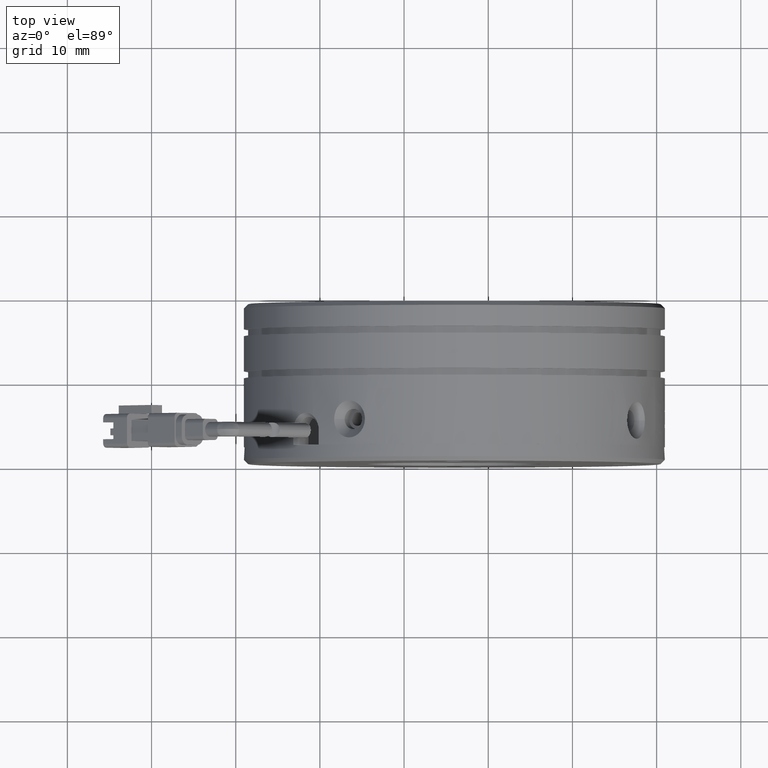
[diagram: clean part render]
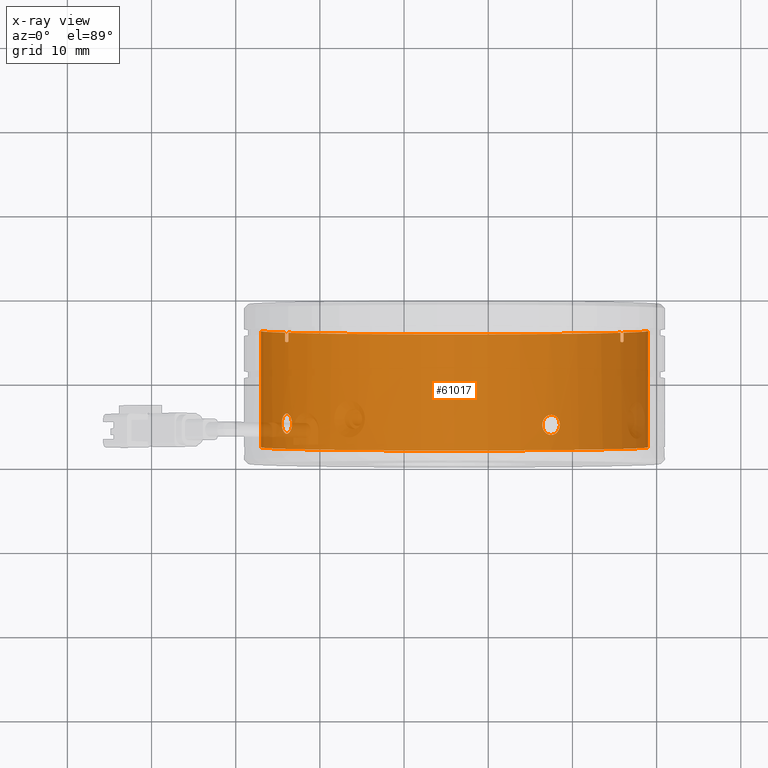
[diagram: x-ray — body ghosted, one internal face saturated and labeled with its STEP entity id]
A machine part, top view, then the same camera in x-ray: the body is ghosted and one INTERNAL B-rep face — a face not visible from any outside direction — is saturated and labeled: STEP entity #61017.
In plain terms, the highlighted cylindrical surface (partial cylindrical patch) has radius 23 mm, axis along (0, -1, 0).
Its self-contained STEP definition (entity closure, byte-faithful):
#7 = CARTESIAN_POINT ( 'NONE',  ( -24.51727409074066000, 5.168234147060708500, -10.44510667526038500 ) ) ;
#72 = ORIENTED_EDGE ( 'NONE', *, *, #37452, .T. ) ;
#111 = CARTESIAN_POINT ( 'NONE',  ( -23.97722481509784500, 14.83802741222081100, -11.44352997356001100 ) ) ;
#273 = DIRECTION ( 'NONE',  ( 0.0000000000000000000, -1.000000000000000000, 0.0000000000000000000 ) ) ;
#379 = CARTESIAN_POINT ( 'NONE',  ( 18.97418136128692400, 15.96823414706070900, 3.607411678402394600E-016 ) ) ;
#630 = DIRECTION ( 'NONE',  ( -0.0000000000000000000, 1.000000000000000000, -0.0000000000000000000 ) ) ;
#1054 = VECTOR ( 'NONE', #52074, 1000.000000000000000 ) ;
#1269 = CARTESIAN_POINT ( 'NONE',  ( -24.44793352291791800, 4.563459004488588100, -10.58021073708997100 ) ) ;
#1473 = CARTESIAN_POINT ( 'NONE',  ( -23.31727409074066400, 5.009664724872667600, -12.52356764434301300 ) ) ;
#1841 = DIRECTION ( 'NONE',  ( 0.0000000000000000000, 1.000000000000000000, -0.0000000000000000000 ) ) ;
#2261 = CARTESIAN_POINT ( 'NONE',  ( 6.419288036547238900, 5.009664838911916700, -20.49145545202761600 ) ) ;
#2462 = CARTESIAN_POINT ( 'NONE',  ( 8.105686671544905400, 4.207178556900186300, -19.54070514681510700 ) ) ;
#2550 = CARTESIAN_POINT ( 'NONE',  ( 16.07962476566575200, 14.91823414709545900, -11.17010051491571300 ) ) ;
#2586 = CARTESIAN_POINT ( 'NONE',  ( -23.75213114963882400, 15.96823414706070900, -11.82677448509502600 ) ) ;
#2693 = FACE_OUTER_BOUND ( 'NONE', #42908, .T. ) ;
#3369 = VERTEX_POINT ( 'NONE', #379 ) ;
#3969 = CARTESIAN_POINT ( 'NONE',  ( -23.56546572866146900, 6.127453521336774700, -12.13319654212314300 ) ) ;
#4013 = CARTESIAN_POINT ( 'NONE',  ( 15.70049387221283300, 14.91823414709988100, -11.82677448509476600 ) ) ;
#4722 = CARTESIAN_POINT ( 'NONE',  ( 6.947721575141827100, 6.217228150472411800, -20.21391931231695000 ) ) ;
#4865 = CARTESIAN_POINT ( 'NONE',  ( -24.08666358602147600, 14.88835536865518200, -11.25000000000226100 ) ) ;
#4971 = VERTEX_POINT ( 'NONE', #22191 ) ;
#5121 = B_SPLINE_CURVE_WITH_KNOTS ( 'NONE', 3,
 ( #35845, #2261, #40670, #11966, #45461, #16775, #50259, #21615, #55032, #26466, #59813, #31278, #2462, #36055, #7281, #40873, #12166, #45667 ),
 .UNSPECIFIED., .F., .F.,
 ( 4, 2, 2, 2, 2, 2, 2, 2, 4 ),
 ( 0.0000000000000000000, 0.0004689497391487928700, 0.0009378994782975857400, 0.001406849217446378600, 0.001875798956595171500, 0.002344748695743964400, 0.002813698434892757100, 0.003282648174041550300, 0.003751597913190343000 ),
 .UNSPECIFIED. ) ;
#5391 = CARTESIAN_POINT ( 'NONE',  ( -24.13126204309777700, 14.91823414706268200, -11.17010051490515300 ) ) ;
#5635 = VERTEX_POINT ( 'NONE', #45544 ) ;
#6104 = CARTESIAN_POINT ( 'NONE',  ( -24.30329861827532100, 4.209014772784633400, -10.85523248981661100 ) ) ;
#7009 = CARTESIAN_POINT ( 'NONE',  ( 6.419288036547239800, 5.168234147060708500, -20.49145545202761900 ) ) ;
#7281 = CARTESIAN_POINT ( 'NONE',  ( 8.369952832163601600, 4.563038406329866300, -19.37391274317719000 ) ) ;
#7345 = VECTOR ( 'NONE', #273, 1000.000000000000000 ) ;
#7709 = B_SPLINE_CURVE_WITH_KNOTS ( 'NONE', 3,
 ( #18289, #13466, #27959, #61297, #32764, #3969, #37557, #8812, #42389, #13676, #47178, #18497, #51955, #23356, #56714, #28163, #61502, #32978 ),
 .UNSPECIFIED., .F., .F.,
 ( 4, 2, 2, 2, 2, 2, 2, 2, 4 ),
 ( 0.0000000000000000000, 0.0004689497391487915200, 0.0009378994782975830300, 0.001406849217446374700, 0.001875798956595166100, 0.002344748695743957500, 0.002813698434892749300, 0.003282648174041540700, 0.003751597913190332100 ),
 .UNSPECIFIED. ) ;
#8716 = ORIENTED_EDGE ( 'NONE', *, *, #25869, .F. ) ;
#8812 = CARTESIAN_POINT ( 'NONE',  ( -23.78529278002920600, 6.336581184384623800, -11.77217193391860100 ) ) ;
#9075 = CARTESIAN_POINT ( 'NONE',  ( 15.95881437383662200, 14.84346665168640700, -11.38557509623158700 ) ) ;
#9585 = CARTESIAN_POINT ( 'NONE',  ( 6.632915089850048000, 5.905454435005612600, -20.38146152833930100 ) ) ;
#9984 = B_SPLINE_CURVE_WITH_KNOTS ( 'NONE', 3,
 ( #23690, #42709, #14202, #47703, #19051, #52492, #23908, #57264, #28711, #62054, #33511, #4722, #38323, #9585, #43124, #14422, #47909, #19260 ),
 .UNSPECIFIED., .F., .F.,
 ( 4, 2, 2, 2, 2, 2, 2, 2, 4 ),
 ( 0.003751597913190343000, 0.004220547989596555600, 0.004689498066002767800, 0.005158448142408979900, 0.005627398218815192100, 0.006096348295221404300, 0.006565298371627616500, 0.007034248448033828700, 0.007503198524440040900 ),
 .UNSPECIFIED. ) ;
#10456 = CIRCLE ( 'NONE', #29030, 23.00000000000000000 ) ;
#10583 = ORIENTED_EDGE ( 'NONE', *, *, #43173, .F. ) ;
#10656 = CARTESIAN_POINT ( 'NONE',  ( 18.97418136128692400, 2.168234147060708900, 3.607411678402394600E-016 ) ) ;
#10977 = CARTESIAN_POINT ( 'NONE',  ( -24.10055566186272800, 3.999887109736790500, -11.22612060484236300 ) ) ;
#11528 = CIRCLE ( 'NONE', #34426, 23.00000000000000000 ) ;
#11966 = CARTESIAN_POINT ( 'NONE',  ( 6.554392098376819600, 4.563459004488598800, -20.42211488420486600 ) ) ;
#12166 = CARTESIAN_POINT ( 'NONE',  ( 8.497749005629934500, 5.009664952951660600, -19.29145545202758800 ) ) ;
#12312 = B_SPLINE_CURVE_WITH_KNOTS ( 'NONE', 3,
 ( #48326, #14839, #111, #19673, #53116, #24518 ),
 .UNSPECIFIED., .F., .F.,
 ( 4, 2, 4 ),
 ( 6.971257758409268300E-016, 0.0003392395238574776000, 0.0006784790477142580600 ),
 .UNSPECIFIED. ) ;
#12329 = LINE ( 'NONE', #15993, #39318 ) ;
#12584 = DIRECTION ( 'NONE',  ( 1.000000000000000000, 0.0000000000000000000, 2.168404344971000200E-019 ) ) ;
#12660 = DIRECTION ( 'NONE',  ( 0.0000000000000000000, -1.000000000000000000, 0.0000000000000000000 ) ) ;
#12721 = CARTESIAN_POINT ( 'NONE',  ( -4.025818638713078100, 15.96823414706070900, 3.557538378468061400E-016 ) ) ;
#12839 = DIRECTION ( 'NONE',  ( 0.0000000000000000000, -1.000000000000000000, 0.0000000000000000000 ) ) ;
#13420 = B_SPLINE_CURVE_WITH_KNOTS ( 'NONE', 3,
 ( #4013, #37599, #37823, #9075, #42629, #13938 ),
 .UNSPECIFIED., .F., .F.,
 ( 4, 2, 4 ),
 ( 1.758853789119408300E-014, 0.0003891355553897409600, 0.0007782711107618934500 ),
 .UNSPECIFIED. ) ;
#13466 = CARTESIAN_POINT ( 'NONE',  ( -23.31727409074066400, 5.326803455209498500, -12.52356764434300700 ) ) ;
#13676 = CARTESIAN_POINT ( 'NONE',  ( -24.02226217251855900, 6.368341060133242400, -11.36515498491086400 ) ) ;
#13681 = ORIENTED_EDGE ( 'NONE', *, *, #48724, .F. ) ;
#13938 = CARTESIAN_POINT ( 'NONE',  ( 16.07962476566575200, 14.91823414709545900, -11.17010051491571300 ) ) ;
#14202 = CARTESIAN_POINT ( 'NONE',  ( 8.471554184323547800, 5.482399001313250000, -19.30852941336860000 ) ) ;
#14422 = CARTESIAN_POINT ( 'NONE',  ( 6.447232694357950300, 5.482696053805874200, -20.47727621323946300 ) ) ;
#14505 = EDGE_CURVE ( 'NONE', #46902, #61086, #26618, .T. ) ;
#14839 = CARTESIAN_POINT ( 'NONE',  ( -24.03305864746466400, 14.85614627210344100, -11.34558758762871700 ) ) ;
#15531 = ORIENTED_EDGE ( 'NONE', *, *, #30269, .T. ) ;
#15595 = CARTESIAN_POINT ( 'NONE',  ( -24.51727409074066000, 5.168234147060708500, -10.44510667526038500 ) ) ;
#15785 = CARTESIAN_POINT ( 'NONE',  ( -23.86655334049586200, 3.968127233988175500, -11.63485059316136700 ) ) ;
#15945 = ORIENTED_EDGE ( 'NONE', *, *, #43993, .F. ) ;
#15980 = ORIENTED_EDGE ( 'NONE', *, *, #32721, .T. ) ;
#15993 = CARTESIAN_POINT ( 'NONE',  ( -27.02581863871307600, 15.96823414706070900, 3.167454145892285200E-015 ) ) ;
#16318 = B_SPLINE_CURVE_WITH_KNOTS ( 'NONE', 3,
 ( #28858, #18990, #33651, #4865 ),
 .UNSPECIFIED., .F., .F.,
 ( 4, 4 ),
 ( 7.106630889490698700E-016, 9.625846192079707600E-005 ),
 .UNSPECIFIED. ) ;
#16381 = VERTEX_POINT ( 'NONE', #7 ) ;
#16775 = CARTESIAN_POINT ( 'NONE',  ( 6.829413851103458600, 4.209014772784638800, -20.27747997956227600 ) ) ;
#16896 = CARTESIAN_POINT ( 'NONE',  ( 16.07962476567177700, 19.16823414706070800, -11.17010051490488600 ) ) ;
#17359 = EDGE_CURVE ( 'NONE', #46902, #49375, #10456, .T. ) ;
#18099 = CARTESIAN_POINT ( 'NONE',  ( -27.02581863871307600, 15.96823414706070900, 3.167454145892285200E-015 ) ) ;
#18201 = CARTESIAN_POINT ( 'NONE',  ( 15.70049387221283300, 19.16823414706070800, -11.82677448509476600 ) ) ;
#18289 = CARTESIAN_POINT ( 'NONE',  ( -23.31727409074066400, 5.168234147060708500, -12.52356764434301100 ) ) ;
#18497 = CARTESIAN_POINT ( 'NONE',  ( -24.23973795103000100, 6.217228150472412700, -10.97354021385497100 ) ) ;
#18900 = CARTESIAN_POINT ( 'NONE',  ( -24.08666358602147600, 14.88835536865518200, -11.25000000000226100 ) ) ;
#18990 = CARTESIAN_POINT ( 'NONE',  ( -24.11658433066670800, 14.90745792059463100, -11.19651942816333300 ) ) ;
#19051 = CARTESIAN_POINT ( 'NONE',  ( 8.294995099802328300, 5.906101795815303900, -19.42189011271373600 ) ) ;
#19260 = CARTESIAN_POINT ( 'NONE',  ( 6.419288036547239800, 5.168234147060708500, -20.49145545202761900 ) ) ;
#19673 = CARTESIAN_POINT ( 'NONE',  ( -23.86284854352407000, 14.85100099504852800, -11.64067142507188100 ) ) ;
#19774 = ORIENTED_EDGE ( 'NONE', *, *, #33905, .F. ) ;
#19976 = ORIENTED_EDGE ( 'NONE', *, *, #17359, .F. ) ;
#20124 = EDGE_CURVE ( 'NONE', #49630, #57515, #57051, .T. ) ;
#20617 = CARTESIAN_POINT ( 'NONE',  ( -23.63614288951995600, 4.119240143649001600, -12.01899752758801700 ) ) ;
#21503 = EDGE_CURVE ( 'NONE', #22308, #16381, #7709, .T. ) ;
#21526 = CARTESIAN_POINT ( 'NONE',  ( -23.31727409074066400, 5.168234147060708500, -12.52356764434301100 ) ) ;
#21615 = CARTESIAN_POINT ( 'NONE',  ( 7.200301966129214500, 3.999887109736792300, -20.07473702314969400 ) ) ;
#22175 = VERTEX_POINT ( 'NONE', #10656 ) ;
#22191 = CARTESIAN_POINT ( 'NONE',  ( 8.497749005629868800, 5.168234147060708500, -19.29145545202763000 ) ) ;
#22308 = VERTEX_POINT ( 'NONE', #21526 ) ;
#23175 = VERTEX_POINT ( 'NONE', #23915 ) ;
#23356 = CARTESIAN_POINT ( 'NONE',  ( -24.40728016705234900, 5.905454435005602000, -10.65873372856318500 ) ) ;
#23593 = ORIENTED_EDGE ( 'NONE', *, *, #38319, .F. ) ;
#23690 = CARTESIAN_POINT ( 'NONE',  ( 8.497749005629868800, 5.168234147060708500, -19.29145545202763000 ) ) ;
#23908 = CARTESIAN_POINT ( 'NONE',  ( 7.993520014015684800, 6.216857703484254000, -19.61010833050399400 ) ) ;
#23915 = CARTESIAN_POINT ( 'NONE',  ( 15.70049387221283300, 14.91823414709988100, -11.82677448509476600 ) ) ;
#24260 = CARTESIAN_POINT ( 'NONE',  ( 18.97418136128692400, 15.96823414706070900, 3.607411678402394600E-016 ) ) ;
#24457 = VECTOR ( 'NONE', #42296, 1000.000000000000000 ) ;
#24518 = CARTESIAN_POINT ( 'NONE',  ( -23.75213114965118400, 14.91823414705608800, -11.82677448507443800 ) ) ;
#24840 = ORIENTED_EDGE ( 'NONE', *, *, #14505, .T. ) ;
#25394 = EDGE_CURVE ( 'NONE', #26542, #61086, #12312, .T. ) ;
#25479 = CARTESIAN_POINT ( 'NONE',  ( -23.44728358399235200, 4.431013859115802600, -12.32149658551559700 ) ) ;
#25581 = B_SPLINE_CURVE_WITH_KNOTS ( 'NONE', 3,
 ( #15595, #49060, #30081, #1269, #34832, #6104, #39656, #10977, #44497, #15785, #49273, #20617, #54080, #25479, #58816, #30282, #1473, #35044 ),
 .UNSPECIFIED., .F., .F.,
 ( 4, 2, 2, 2, 2, 2, 2, 2, 4 ),
 ( 0.003751597913190332100, 0.004220547989596542600, 0.004689498066002753900, 0.005158448142408964300, 0.005627398218815174800, 0.006096348295221385200, 0.006565298371627595700, 0.007034248448033807000, 0.007503198524440017400 ),
 .UNSPECIFIED. ) ;
#25869 = EDGE_CURVE ( 'NONE', #23175, #38558, #13420, .T. ) ;
#26466 = CARTESIAN_POINT ( 'NONE',  ( 7.609031954448225200, 3.968127233988175500, -19.84073470178282200 ) ) ;
#26542 = VERTEX_POINT ( 'NONE', #18900 ) ;
#26618 = LINE ( 'NONE', #52830, #1054 ) ;
#26778 = FACE_BOUND ( 'NONE', #61461, .T. ) ;
#27266 = DIRECTION ( 'NONE',  ( 0.0000000000000000000, -1.000000000000000000, 0.0000000000000000000 ) ) ;
#27959 = CARTESIAN_POINT ( 'NONE',  ( -23.33434805208164100, 5.482399001313252600, -12.49737282303668500 ) ) ;
#28163 = CARTESIAN_POINT ( 'NONE',  ( -24.50309485195251100, 5.482696053805885800, -10.47305133307109400 ) ) ;
#28289 = FACE_BOUND ( 'NONE', #35143, .T. ) ;
#28502 = CARTESIAN_POINT ( 'NONE',  ( -24.13126204309777700, 15.96823414706070900, -11.17010051490514200 ) ) ;
#28711 = CARTESIAN_POINT ( 'NONE',  ( 7.610449721890795200, 6.368126671223016000, -19.83990323745869900 ) ) ;
#28858 = CARTESIAN_POINT ( 'NONE',  ( -24.13126204309777700, 14.91823414706268200, -11.17010051490515300 ) ) ;
#29030 = AXIS2_PLACEMENT_3D ( 'NONE', #12721, #12660, #12584 ) ;
#29420 = CARTESIAN_POINT ( 'NONE',  ( -4.025818638713078100, 2.168234147060708900, 3.557538378468061400E-016 ) ) ;
#29514 = VECTOR ( 'NONE', #36184, 1000.000000000000000 ) ;
#29992 = ORIENTED_EDGE ( 'NONE', *, *, #21503, .F. ) ;
#30081 = CARTESIAN_POINT ( 'NONE',  ( -24.50312569071227400, 4.854069292808167900, -10.47299057017806100 ) ) ;
#30241 = ORIENTED_EDGE ( 'NONE', *, *, #25394, .F. ) ;
#30269 = EDGE_CURVE ( 'NONE', #23175, #49375, #38676, .T. ) ;
#30282 = CARTESIAN_POINT ( 'NONE',  ( -23.33438525491072100, 4.853772240315541900, -12.49731573444079500 ) ) ;
#30357 = EDGE_CURVE ( 'NONE', #4971, #38063, #9984, .T. ) ;
#31278 = CARTESIAN_POINT ( 'NONE',  ( 7.993178888874879800, 4.119240143649005100, -19.61032425080691200 ) ) ;
#31877 = VERTEX_POINT ( 'NONE', #41017 ) ;
#32721 = EDGE_CURVE ( 'NONE', #52272, #31877, #12329, .T. ) ;
#32764 = CARTESIAN_POINT ( 'NONE',  ( -23.44770875142677000, 5.906101795815301300, -12.32081373851547000 ) ) ;
#32978 = CARTESIAN_POINT ( 'NONE',  ( -24.51727409074066000, 5.168234147060708500, -10.44510667526038500 ) ) ;
#33511 = CARTESIAN_POINT ( 'NONE',  ( 7.202274237861703700, 6.337311667188211000, -20.07364065497242600 ) ) ;
#33651 = CARTESIAN_POINT ( 'NONE',  ( -24.10172105990644900, 14.89740281173176200, -11.22314972009963600 ) ) ;
#33905 = EDGE_CURVE ( 'NONE', #22175, #31877, #47187, .T. ) ;
#34221 = DIRECTION ( 'NONE',  ( 1.000000000000000000, 0.0000000000000000000, 2.168404344971000200E-019 ) ) ;
#34426 = AXIS2_PLACEMENT_3D ( 'NONE', #55811, #27266, #60609 ) ;
#34832 = CARTESIAN_POINT ( 'NONE',  ( -24.40690138792054900, 4.430366498306113100, -10.65944335786233300 ) ) ;
#34903 = ORIENTED_EDGE ( 'NONE', *, *, #36155, .F. ) ;
#35044 = CARTESIAN_POINT ( 'NONE',  ( -23.31727409074066400, 5.168234147060708500, -12.52356764434301100 ) ) ;
#35143 = EDGE_LOOP ( 'NONE', ( #10583, #46600 ) ) ;
#35845 = CARTESIAN_POINT ( 'NONE',  ( 6.419288036547239800, 5.168234147060708500, -20.49145545202761900 ) ) ;
#36055 = CARTESIAN_POINT ( 'NONE',  ( 8.295677946802465300, 4.431013859115814100, -19.42146494527930000 ) ) ;
#36155 = EDGE_CURVE ( 'NONE', #49630, #26542, #16318, .T. ) ;
#36184 = DIRECTION ( 'NONE',  ( -0.0000000000000000000, -1.000000000000000000, 0.0000000000000000000 ) ) ;
#37452 = EDGE_CURVE ( 'NONE', #5635, #38558, #56346, .T. ) ;
#37557 = CARTESIAN_POINT ( 'NONE',  ( -23.63592696921703500, 6.216857703484254000, -12.01933865272883000 ) ) ;
#37599 = CARTESIAN_POINT ( 'NONE',  ( 15.76380047251868900, 14.87433580771676500, -11.72118307610875100 ) ) ;
#37823 = CARTESIAN_POINT ( 'NONE',  ( 15.82892478249419300, 14.84279221929445700, -11.61060035468653600 ) ) ;
#38063 = VERTEX_POINT ( 'NONE', #7009 ) ;
#38319 = EDGE_CURVE ( 'NONE', #3369, #22175, #45623, .T. ) ;
#38323 = CARTESIAN_POINT ( 'NONE',  ( 6.831175771161197100, 6.129289737221221800, -20.27654435823675200 ) ) ;
#38558 = VERTEX_POINT ( 'NONE', #2550 ) ;
#38595 = ORIENTED_EDGE ( 'NONE', *, *, #42704, .F. ) ;
#38676 = LINE ( 'NONE', #18201, #24457 ) ;
#39318 = VECTOR ( 'NONE', #54255, 1000.000000000000000 ) ;
#39656 = CARTESIAN_POINT ( 'NONE',  ( -24.23992541391634600, 4.119610590637159400, -10.97318265881704500 ) ) ;
#40670 = CARTESIAN_POINT ( 'NONE',  ( 6.447171931464920300, 4.854069292808164300, -20.47730705199924000 ) ) ;
#40873 = CARTESIAN_POINT ( 'NONE',  ( 8.471497095727651000, 4.853772240315533900, -19.30856661619768700 ) ) ;
#41017 = CARTESIAN_POINT ( 'NONE',  ( -27.02581863871307600, 2.168234147060708900, 3.167454145892285200E-015 ) ) ;
#41179 = CARTESIAN_POINT ( 'NONE',  ( 15.70049387221281900, 15.96823414706070900, -11.82677448509477200 ) ) ;
#41554 = CARTESIAN_POINT ( 'NONE',  ( -4.025818638713078100, 15.96823414706070900, 3.557538378468061400E-016 ) ) ;
#42296 = DIRECTION ( 'NONE',  ( 0.0000000000000000000, 1.000000000000000000, -0.0000000000000000000 ) ) ;
#42389 = CARTESIAN_POINT ( 'NONE',  ( -23.86572187617173700, 6.368126671223016900, -11.63626836060394600 ) ) ;
#42629 = CARTESIAN_POINT ( 'NONE',  ( 16.02016269395164400, 14.87457770175983800, -11.27712831792939200 ) ) ;
#42704 = EDGE_CURVE ( 'NONE', #5635, #3369, #55271, .T. ) ;
#42709 = CARTESIAN_POINT ( 'NONE',  ( 8.497749005629806600, 5.326803455210077600, -19.29145545202767000 ) ) ;
#42908 = EDGE_LOOP ( 'NONE', ( #13681, #15980, #19774, #23593, #38595, #72, #8716, #15531, #19976, #24840, #30241, #34903, #45595 ) ) ;
#43124 = CARTESIAN_POINT ( 'NONE',  ( 6.554596232143154600, 5.773429887791558600, -20.42200936487416000 ) ) ;
#43173 = EDGE_CURVE ( 'NONE', #38063, #4971, #5121, .T. ) ;
#43447 = AXIS2_PLACEMENT_3D ( 'NONE', #29420, #630, #34221 ) ;
#43993 = EDGE_CURVE ( 'NONE', #16381, #22308, #25581, .T. ) ;
#44497 = CARTESIAN_POINT ( 'NONE',  ( -24.02307426297841900, 3.968341622898398800, -11.36372603196254800 ) ) ;
#44678 = AXIS2_PLACEMENT_3D ( 'NONE', #56185, #60999, #51641 ) ;
#45461 = CARTESIAN_POINT ( 'NONE',  ( 6.633624719149183100, 4.430366498306113100, -20.38108274920750400 ) ) ;
#45544 = CARTESIAN_POINT ( 'NONE',  ( 16.07962476567176300, 15.96823414706070900, -11.17010051490488800 ) ) ;
#45595 = ORIENTED_EDGE ( 'NONE', *, *, #20124, .T. ) ;
#45623 = LINE ( 'NONE', #24260, #7345 ) ;
#45667 = CARTESIAN_POINT ( 'NONE',  ( 8.497749005629868800, 5.168234147060708500, -19.29145545202763000 ) ) ;
#46203 = CYLINDRICAL_SURFACE ( 'NONE', #44678, 23.00000000000000000 ) ;
#46340 = DIRECTION ( 'NONE',  ( 1.000000000000000000, 0.0000000000000000000, 2.168404344971000200E-019 ) ) ;
#46600 = ORIENTED_EDGE ( 'NONE', *, *, #30357, .F. ) ;
#46902 = VERTEX_POINT ( 'NONE', #2586 ) ;
#47178 = CARTESIAN_POINT ( 'NONE',  ( -24.09945929368546300, 6.337311667188216400, -11.22809287657485600 ) ) ;
#47187 = CIRCLE ( 'NONE', #43447, 23.00000000000000000 ) ;
#47703 = CARTESIAN_POINT ( 'NONE',  ( 8.370146281467745200, 5.773009289632824400, -19.37378871781514200 ) ) ;
#47909 = CARTESIAN_POINT ( 'NONE',  ( 6.419288036547241600, 5.326803569248748500, -20.49145545202761900 ) ) ;
#48326 = CARTESIAN_POINT ( 'NONE',  ( -24.08666358602147600, 14.88835536865518200, -11.25000000000226100 ) ) ;
#48724 = EDGE_CURVE ( 'NONE', #52272, #57515, #11528, .T. ) ;
#49060 = CARTESIAN_POINT ( 'NONE',  ( -24.51727409074062400, 5.009664838911338500, -10.44510667526045100 ) ) ;
#49273 = CARTESIAN_POINT ( 'NONE',  ( -23.78645263336407100, 3.999156626933202800, -11.77023631535894700 ) ) ;
#49375 = VERTEX_POINT ( 'NONE', #41179 ) ;
#49630 = VERTEX_POINT ( 'NONE', #5391 ) ;
#50259 = CARTESIAN_POINT ( 'NONE',  ( 6.947364020103898400, 4.119610590637164700, -20.21410677520329800 ) ) ;
#51097 = VECTOR ( 'NONE', #1841, 1000.000000000000000 ) ;
#51641 = DIRECTION ( 'NONE',  ( 1.000000000000000000, 0.0000000000000000000, 2.168404344971000200E-019 ) ) ;
#51955 = CARTESIAN_POINT ( 'NONE',  ( -24.30236299694980000, 6.129289737221230700, -10.85699440987434800 ) ) ;
#52074 = DIRECTION ( 'NONE',  ( -0.0000000000000000000, -1.000000000000000000, 0.0000000000000000000 ) ) ;
#52272 = VERTEX_POINT ( 'NONE', #18099 ) ;
#52492 = CARTESIAN_POINT ( 'NONE',  ( 8.107377903409993500, 6.127453521336780900, -19.53964708994842800 ) ) ;
#52830 = CARTESIAN_POINT ( 'NONE',  ( -23.75213114963883100, 19.16823414706070800, -11.82677448509504000 ) ) ;
#53116 = CARTESIAN_POINT ( 'NONE',  ( -23.80730710370534100, 14.87997379590575700, -11.73474448026344200 ) ) ;
#53916 = AXIS2_PLACEMENT_3D ( 'NONE', #41554, #12839, #46340 ) ;
#54080 = CARTESIAN_POINT ( 'NONE',  ( -23.56652378552814000, 4.207178556900194300, -12.13150531025805100 ) ) ;
#54255 = DIRECTION ( 'NONE',  ( 0.0000000000000000000, -1.000000000000000000, 0.0000000000000000000 ) ) ;
#55032 = CARTESIAN_POINT ( 'NONE',  ( 7.337907393249398800, 3.968341622898399600, -19.99725562426538200 ) ) ;
#55271 = CIRCLE ( 'NONE', #53916, 23.00000000000000000 ) ;
#55811 = CARTESIAN_POINT ( 'NONE',  ( -4.025818638713078100, 15.96823414706070900, 3.557538378468061400E-016 ) ) ;
#56185 = CARTESIAN_POINT ( 'NONE',  ( -4.025818638713078100, 15.96823414706070900, 3.557538378468061400E-016 ) ) ;
#56346 = LINE ( 'NONE', #16896, #29514 ) ;
#56714 = CARTESIAN_POINT ( 'NONE',  ( -24.44782800358720800, 5.773429887791549800, -10.58041487085629100 ) ) ;
#57051 = LINE ( 'NONE', #59182, #51097 ) ;
#57264 = CARTESIAN_POINT ( 'NONE',  ( 7.746353295205459200, 6.336581184384623800, -19.75947414131616900 ) ) ;
#57515 = VERTEX_POINT ( 'NONE', #28502 ) ;
#58816 = CARTESIAN_POINT ( 'NONE',  ( -23.39973138189022700, 4.563038406329858400, -12.39577147087673700 ) ) ;
#59182 = CARTESIAN_POINT ( 'NONE',  ( -24.13126204309777700, 19.16823414706070800, -11.17010051490515300 ) ) ;
#59813 = CARTESIAN_POINT ( 'NONE',  ( 7.744417676645795700, 3.999156626933201100, -19.76063399465103400 ) ) ;
#60609 = DIRECTION ( 'NONE',  ( 1.000000000000000000, 0.0000000000000000000, 2.168404344971000200E-019 ) ) ;
#60999 = DIRECTION ( 'NONE',  ( 0.0000000000000000000, -1.000000000000000000, 0.0000000000000000000 ) ) ;
#61017 = ADVANCED_FACE ( 'NONE', ( #26778, #28289, #2693 ), #46203, .F. ) ;
#61086 = VERTEX_POINT ( 'NONE', #61605 ) ;
#61297 = CARTESIAN_POINT ( 'NONE',  ( -23.39960735652817500, 5.773009289632813800, -12.39596492018088700 ) ) ;
#61461 = EDGE_LOOP ( 'NONE', ( #29992, #15945 ) ) ;
#61502 = CARTESIAN_POINT ( 'NONE',  ( -24.51727409074070600, 5.326803341169756400, -10.44510667526032000 ) ) ;
#61605 = CARTESIAN_POINT ( 'NONE',  ( -23.75213114965118400, 14.91823414705608800, -11.82677448507443800 ) ) ;
#62054 = CARTESIAN_POINT ( 'NONE',  ( 7.339336346197720600, 6.368341060133238900, -19.99644353380551100 ) ) ;